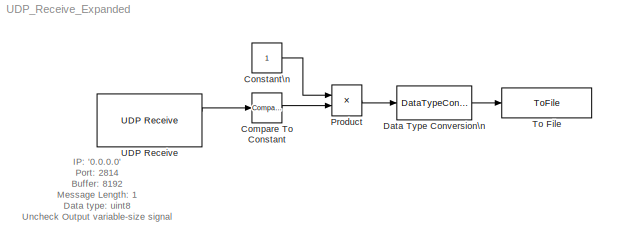
MODEL UDP_Receive_Expanded
KIND model
BLOCK [Reference] Compare To Constant  REF=simulink/Logic and Bit\nOperations/Compare\nTo Constant
  OutDataTypeStr = boolean
  Ports = [1, 1]
  SID = 29
  SourceBlock = simulink/Logic and Bit\nOperations/Compare\nTo Constant
  SourceType = Compare To Constant
  ZeroCross = on
  const = 49
  relop = ==
BLOCK [Constant] Constant\n
  SID = 30
BLOCK [DataTypeConversion] Data Type Conversion\n
  OutDataTypeStr = double
  RndMeth = Floor
  SID = 31
  SaturateOnIntegerOverflow = off
BLOCK [Product] Product
  InputSameDT = off
  OutDataTypeStr = Inherit: Inherit via internal rule
  Ports = [2, 1]
  SID = 32
  SaturateOnIntegerOverflow = off
BLOCK [ToFile] To File
  Filename = unity2simulink.mat
  Ports = [1]
  SID = 13
  SampleTime = 1/256
BLOCK [Reference] UDP Receive  REF=dspnetwork/UDP Receive
  Ports = [0, 2]
  SID = 2
  SourceBlock = dspnetwork/UDP Receive
  SourceType = UDP Receive
  blockingTime = 0
  dims = 1
  isVarSize = off
  localPort = 2814
  localURL = '0.0.0.0'
  recvBufferSize = 8192
  remotePort = -1
  remoteURL = '0.0.0.0'
  sampletime = 1/256
  showBlockingTime = off
  signalDatatype = uint8
ANNOTATION (root): IP: '0.0.0.0'\nPort: 2814\nBuffer: 8192\nMessage Length: 1\nData type: uint8\nUncheck Output variable-size signal\nSample time: 1/256
LINE Compare To Constant:1 -> Product:2
LINE Constant\n:1 -> Product:1
LINE Data Type Conversion\n:1 -> To File:1
LINE Product:1 -> Data Type Conversion\n:1
LINE UDP Receive:1 -> Compare To Constant:1
